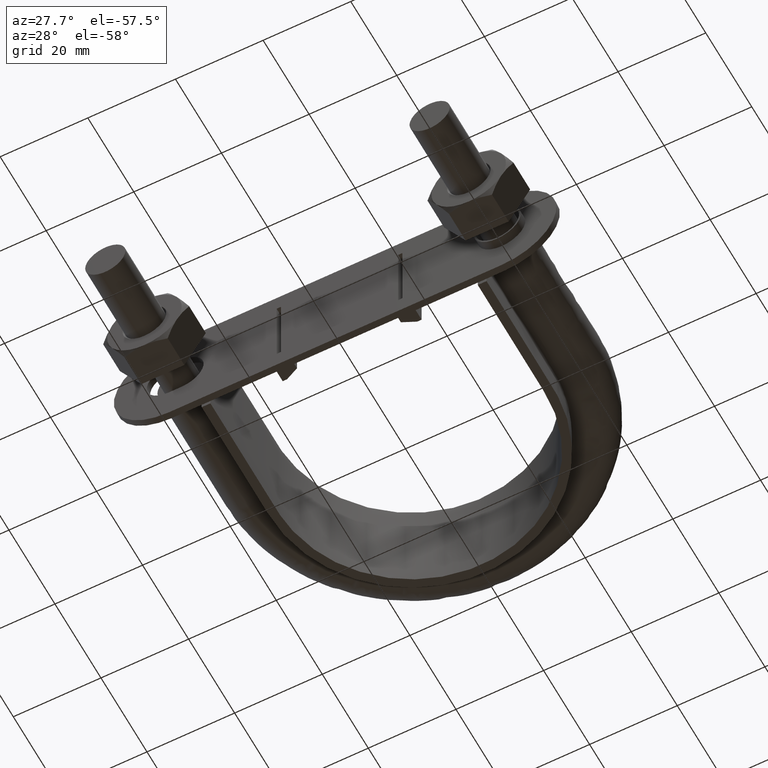
[diagram: clean part render]
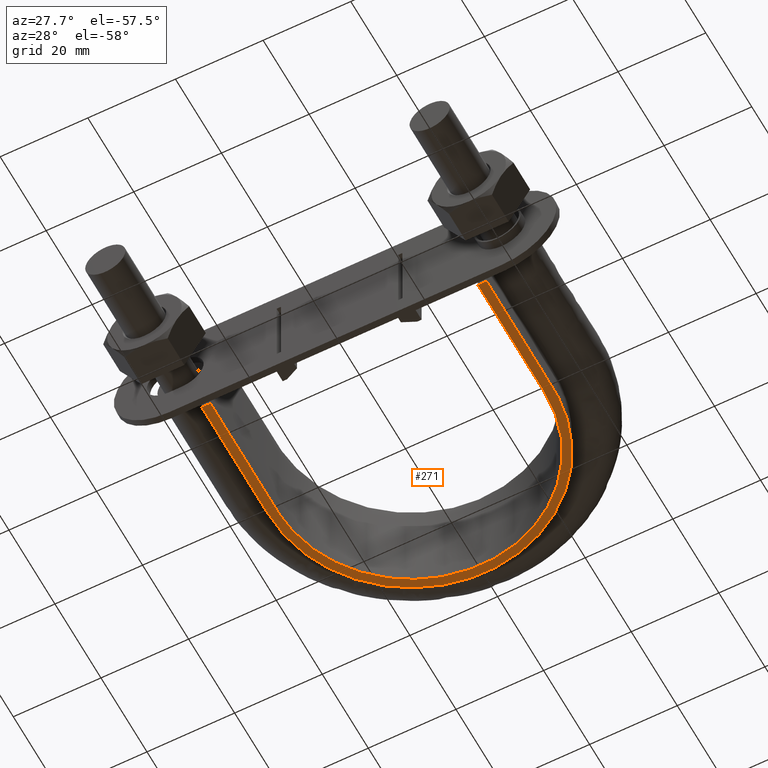
[diagram: same view with one face highlighted and labeled with its STEP entity id]
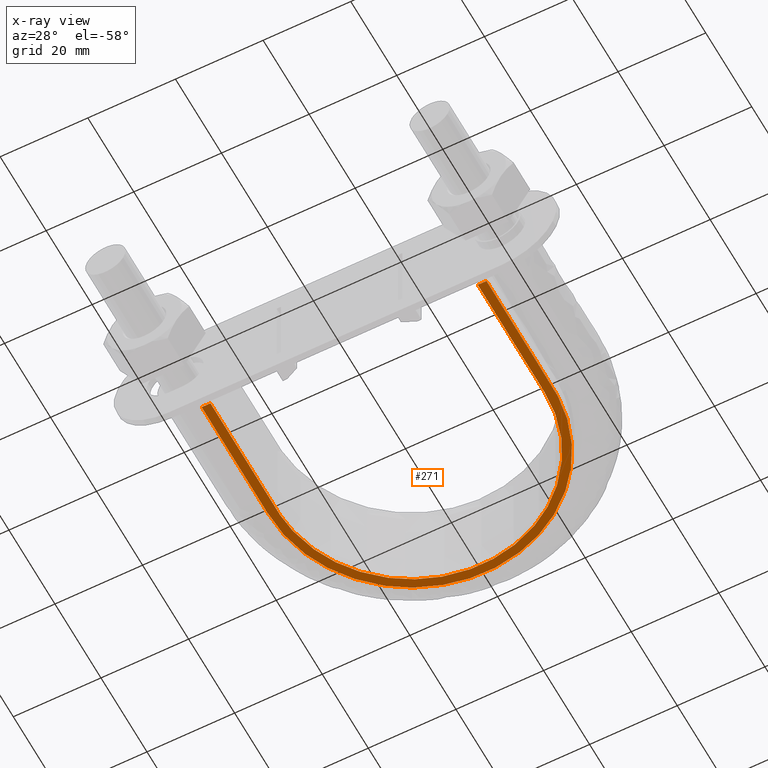
[diagram: x-ray of the same camera — body ghosted, the highlighted face saturated]
A machine part, auxiliary view. The second image highlights one B-rep face of the part: STEP entity #271.
The next image is the same camera in x-ray: the body ghosted, the highlighted face saturated — about 0% of this face is hidden behind the body in this view.
In plain terms, the highlighted planar face has unit normal (0, 0, 1).
Its self-contained STEP definition (entity closure, byte-faithful):
#271 = ADVANCED_FACE( '', ( #389 ), #390, .F. );
#389 = FACE_OUTER_BOUND( '', #1169, .T. );
#390 = PLANE( '', #1170 );
#1169 = EDGE_LOOP( '', ( #1752, #1753, #1754, #1755 ) );
#1170 = AXIS2_PLACEMENT_3D( '', #1756, #1757, #1758 );
#1752 = ORIENTED_EDGE( '', *, *, #2525, .F. );
#1753 = ORIENTED_EDGE( '', *, *, #2529, .F. );
#1754 = ORIENTED_EDGE( '', *, *, #2522, .F. );
#1755 = ORIENTED_EDGE( '', *, *, #2519, .F. );
#1756 = CARTESIAN_POINT( '', ( 45.0000000000000, 113.300000000000, -12.5000000000000 ) );
#1757 = DIRECTION( '', ( 0.000000000000000, 0.000000000000000, 1.00000000000000 ) );
#1758 = DIRECTION( '', ( 1.00000000000000, 0.000000000000000, 0.000000000000000 ) );
#2519 = EDGE_CURVE( '', #2754, #2756, #2757, .F. );
#2522 = EDGE_CURVE( '', #2756, #2761, #2762, .F. );
#2525 = EDGE_CURVE( '', #2766, #2754, #2767, .F. );
#2529 = EDGE_CURVE( '', #2761, #2766, #2772, .F. );
#2754 = VERTEX_POINT( '', #3143 );
#2756 = VERTEX_POINT( '', #3146 );
#2757 = LINE( '', #3147, #3148 );
#2761 = VERTEX_POINT( '', #3191 );
#2762 = B_SPLINE_CURVE_WITH_KNOTS( '', 3, ( #3192, #3193, #3194, #3195, #3196, #3197, #3198, #3199, #3200, #3201, #3202, #3203, #3204, #3205, #3206, #3207, #3208 ), .UNSPECIFIED., .F., .F., ( 4, 3, 1, 1, 1, 1, 1, 1, 1, 3, 4 ), ( 0.117824773413901, 1.00000000000000, 1.50000000000000, 2.00000000000000, 3.00000000000000, 4.00000000000000, 5.00000000000000, 6.00000000000000, 6.50000000000000, 7.00000000000000, 7.88217522658610 ), .UNSPECIFIED. );
#2766 = VERTEX_POINT( '', #3258 );
#2767 = B_SPLINE_CURVE_WITH_KNOTS( '', 3, ( #3259, #3260, #3261, #3262, #3263, #3264, #3265, #3266, #3267, #3268, #3269, #3270, #3271, #3272, #3273, #3274, #3275 ), .UNSPECIFIED., .F., .F., ( 4, 3, 1, 1, 1, 1, 1, 1, 1, 3, 4 ), ( -7.88217522658610, -7.00000000000000, -6.50000000000000, -6.00000000000000, -5.00000000000000, -4.00000000000000, -3.00000000000000, -2.00000000000000, -1.50000000000000, -1.00000000000000, -0.117824773413899 ), .UNSPECIFIED. );
#2772 = LINE( '', #3355, #3356 );
#3143 = CARTESIAN_POINT( '', ( 30.5000000000000, 33.3000000000001, -12.5000000000000 ) );
#3146 = CARTESIAN_POINT( '', ( 32.5000000000000, 33.3000000000001, -12.5000000000000 ) );
#3147 = CARTESIAN_POINT( '', ( -45.0000000000000, 33.3000000000001, -12.5000000000000 ) );
#3148 = VECTOR( '', #4002, 1000.00000000000 );
#3191 = CARTESIAN_POINT( '', ( -32.5000000000000, 33.3000000000001, -12.5000000000000 ) );
#3192 = CARTESIAN_POINT( '', ( -32.5000000000000, 33.3000000000001, -12.5000000000000 ) );
#3193 = CARTESIAN_POINT( '', ( -32.5000000000000, 43.0333333333334, -12.5000000000000 ) );
#3194 = CARTESIAN_POINT( '', ( -32.5000000000000, 52.7666666666667, -12.5000000000000 ) );
#3195 = CARTESIAN_POINT( '', ( -32.5000000000000, 62.5000000000000, -12.5000000000000 ) );
#3196 = CARTESIAN_POINT( '', ( -32.5000000000000, 65.3255423698130, -12.5000000000000 ) );
#3197 = CARTESIAN_POINT( '', ( -31.7387347919768, 71.0086177593115, -12.5000000000000 ) );
#3198 = CARTESIAN_POINT( '', ( -27.3871545291852, 81.5827316923998, -12.5000000000000 ) );
#3199 = CARTESIAN_POINT( '', ( -17.0093196223626, 91.9623259718442, -12.5000000000000 ) );
#3200 = CARTESIAN_POINT( '', ( 1.78912902730175E-014, 96.5188370140779, -12.5000000000000 ) );
#3201 = CARTESIAN_POINT( '', ( 17.0093196223626, 91.9623259718442, -12.5000000000000 ) );
#3202 = CARTESIAN_POINT( '', ( 27.3871545291852, 81.5827316923998, -12.5000000000000 ) );
#3203 = CARTESIAN_POINT( '', ( 31.7387347919769, 71.0086177593115, -12.5000000000000 ) );
#3204 = CARTESIAN_POINT( '', ( 32.5000000000000, 65.3255423698130, -12.5000000000000 ) );
#3205 = CARTESIAN_POINT( '', ( 32.5000000000000, 62.5000000000000, -12.5000000000000 ) );
#3206 = CARTESIAN_POINT( '', ( 32.5000000000000, 52.7666666666666, -12.5000000000000 ) );
#3207 = CARTESIAN_POINT( '', ( 32.5000000000000, 43.0333333333334, -12.5000000000000 ) );
#3208 = CARTESIAN_POINT( '', ( 32.5000000000000, 33.3000000000001, -12.5000000000000 ) );
#3258 = CARTESIAN_POINT( '', ( -30.5000000000000, 33.3000000000001, -12.5000000000000 ) );
#3259 = CARTESIAN_POINT( '', ( 30.5000000000000, 33.3000000000001, -12.5000000000000 ) );
#3260 = CARTESIAN_POINT( '', ( 30.5000000000000, 43.0333333333334, -12.5000000000000 ) );
#3261 = CARTESIAN_POINT( '', ( 30.5000000000000, 52.7666666666667, -12.5000000000000 ) );
#3262 = CARTESIAN_POINT( '', ( 30.5000000000000, 62.5000000000000, -12.5000000000000 ) );
#3263 = CARTESIAN_POINT( '', ( 30.5000000000000, 65.1469095748589, -12.5000000000000 ) );
#3264 = CARTESIAN_POINT( '', ( 29.7847488998591, 70.4869374410593, -12.5000000000000 ) );
#3265 = CARTESIAN_POINT( '', ( 25.7022707691493, 80.4072941519287, -12.5000000000000 ) );
#3266 = CARTESIAN_POINT( '', ( 15.9624408097424, 90.1496654273448, -12.5000000000000 ) );
#3267 = CARTESIAN_POINT( '', ( 2.19717068378186E-014, 94.4251672863276, -12.5000000000000 ) );
#3268 = CARTESIAN_POINT( '', ( -15.9624408097423, 90.1496654273448, -12.5000000000000 ) );
#3269 = CARTESIAN_POINT( '', ( -25.7022707691492, 80.4072941519287, -12.5000000000000 ) );
#3270 = CARTESIAN_POINT( '', ( -29.7847488998590, 70.4869374410593, -12.5000000000000 ) );
#3271 = CARTESIAN_POINT( '', ( -30.5000000000000, 65.1469095748589, -12.5000000000000 ) );
#3272 = CARTESIAN_POINT( '', ( -30.5000000000000, 62.5000000000000, -12.5000000000000 ) );
#3273 = CARTESIAN_POINT( '', ( -30.5000000000000, 52.7666666666667, -12.5000000000000 ) );
#3274 = CARTESIAN_POINT( '', ( -30.5000000000000, 43.0333333333334, -12.5000000000000 ) );
#3275 = CARTESIAN_POINT( '', ( -30.5000000000000, 33.3000000000001, -12.5000000000000 ) );
#3355 = CARTESIAN_POINT( '', ( -45.0000000000000, 33.3000000000001, -12.5000000000000 ) );
#3356 = VECTOR( '', #4005, 1000.00000000000 );
#4002 = DIRECTION( '', ( -1.00000000000000, 1.22460635382238E-016, 0.000000000000000 ) );
#4005 = DIRECTION( '', ( -1.00000000000000, 1.22460635382238E-016, 0.000000000000000 ) );